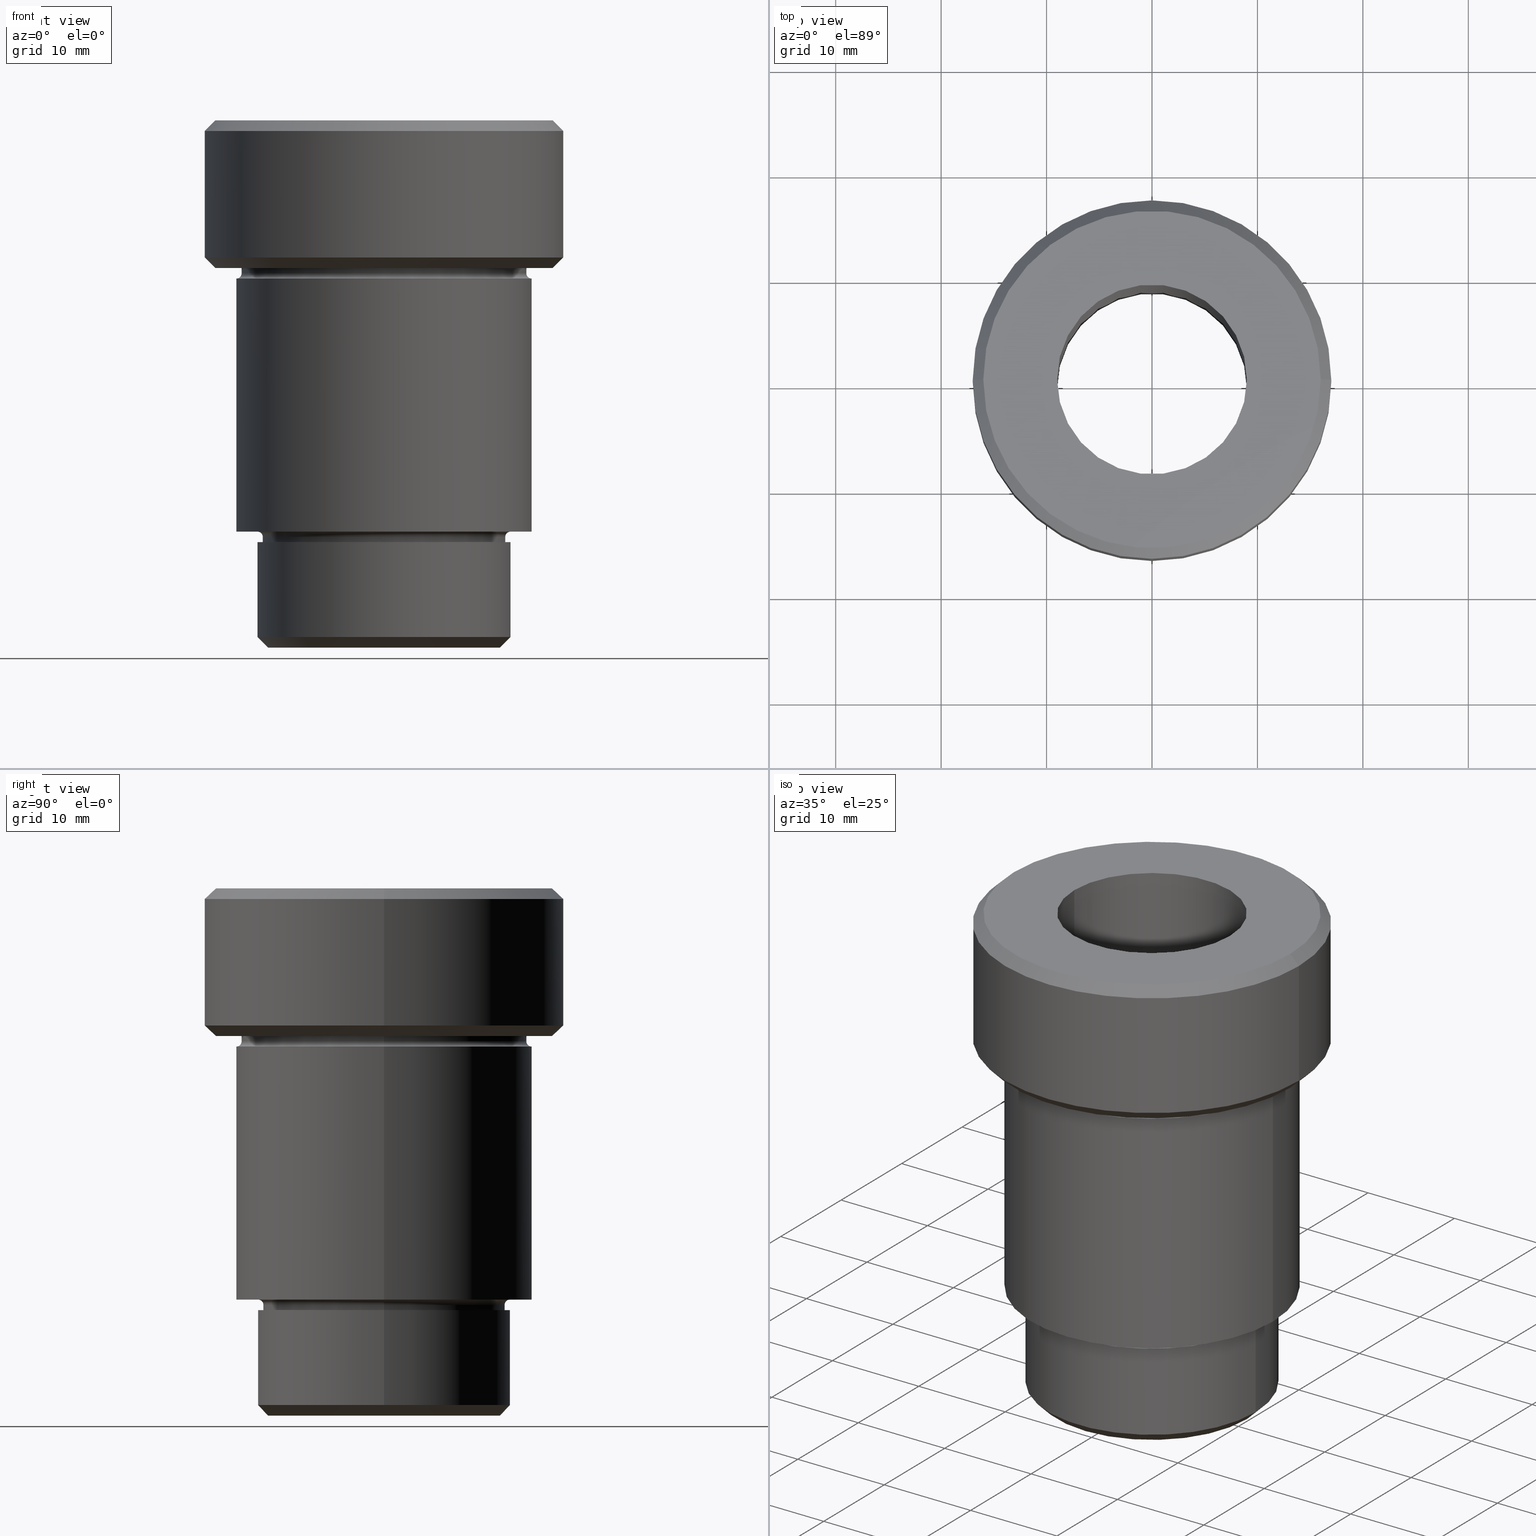
[diagram: canonical four-view strip — front | top / right | iso, engineering-drawing reading convention]
A machine part, canonical four-view strip (front | top / right | iso — engineering-drawing reading convention). The complete STEP part file that produces these views, byte-faithful:
ISO-10303-21;
HEADER;
FILE_DESCRIPTION (( 'STEP AP203' ),
    '1' );
FILE_NAME ('3ec3.STEP',
    '2024-01-08T12:26:03',
    ( '' ),
    ( '' ),
    'SwSTEP 2.0',
    'SolidWorks 2019',
    '' );
FILE_SCHEMA (( 'CONFIG_CONTROL_DESIGN' ));
ENDSEC;

DATA;
#1 = CYLINDRICAL_SURFACE ( 'NONE', #433, 13.50000000000000178 ) ;
#2 = CARTESIAN_POINT ( 'NONE',  ( 12.00000000000000355, 0.000000000000000000, -48.99999999999997868 ) ) ;
#3 = CC_DESIGN_APPROVAL ( #156, ( #348 ) ) ;
#4 = DIRECTION ( 'NONE',  ( 1.000000000000000000, 0.000000000000000000, 0.000000000000000000 ) ) ;
#5 = LINE ( 'NONE', #9, #519 ) ;
#6 = DIRECTION ( 'NONE',  ( -1.000000000000000000, 0.000000000000000000, 0.000000000000000000 ) ) ;
#7 = DIRECTION ( 'NONE',  ( 0.000000000000000000, -1.000000000000000000, 0.000000000000000000 ) ) ;
#8 = EDGE_CURVE ( 'NONE', #194, #87, #744, .T. ) ;
#9 = CARTESIAN_POINT ( 'NONE',  ( -13.50000000000000178, 1.653273178848927064E-15, 0.000000000000000000 ) ) ;
#10 = FACE_OUTER_BOUND ( 'NONE', #30, .T. ) ;
#11 = ORIENTED_EDGE ( 'NONE', *, *, #467, .F. ) ;
#12 = PERSON_AND_ORGANIZATION_ROLE ( 'design_owner' ) ;
#13 = ORIENTED_EDGE ( 'NONE', *, *, #165, .F. ) ;
#14 = CARTESIAN_POINT ( 'NONE',  ( 0.000000000000000000, 14.00000000000000355, -39.00000000000000000 ) ) ;
#15 = DIRECTION ( 'NONE',  ( 0.000000000000000000, 0.000000000000000000, 1.000000000000000000 ) ) ;
#16 = CIRCLE ( 'NONE', #650, 10.99999999999997513 ) ;
#17 = CC_DESIGN_PERSON_AND_ORGANIZATION_ASSIGNMENT ( #506, #193, ( #348 ) ) ;
#18 = DIRECTION ( 'NONE',  ( 1.000000000000000000, 0.000000000000000000, 0.000000000000000000 ) ) ;
#19 = ADVANCED_FACE ( 'NONE', ( #634 ), #478, .T. ) ;
#20 = CARTESIAN_POINT ( 'NONE',  ( 0.000000000000000000, 0.000000000000000000, -48.99999999999997868 ) ) ;
#21 = DIRECTION ( 'NONE',  ( -1.000000000000000000, 0.000000000000000000, 0.000000000000000000 ) ) ;
#22 = PERSON_AND_ORGANIZATION ( #61, #532 ) ;
#23 = CARTESIAN_POINT ( 'NONE',  ( 0.000000000000000000, 0.000000000000000000, -14.99999999999999822 ) ) ;
#24 = APPROVAL_PERSON_ORGANIZATION ( #561, #156, #264 ) ;
#25 = DIRECTION ( 'NONE',  ( -1.000000000000000000, 0.000000000000000000, 0.000000000000000000 ) ) ;
#26 = EDGE_CURVE ( 'NONE', #523, #62, #319, .T. ) ;
#27 = AXIS2_PLACEMENT_3D ( 'NONE', #117, #426, #251 ) ;
#28 = CYLINDRICAL_SURFACE ( 'NONE', #341, 12.00000000000000355 ) ;
#29 = CARTESIAN_POINT ( 'NONE',  ( -11.50000000000000355, 1.408343819019456570E-15, -40.00000000000000000 ) ) ;
#30 = EDGE_LOOP ( 'NONE', ( #48, #511, #164, #147 ) ) ;
#31 = PERSON_AND_ORGANIZATION_ROLE ( 'creator' ) ;
#32 = CARTESIAN_POINT ( 'NONE',  ( 0.000000000000000000, 0.000000000000000000, -50.00000000000000000 ) ) ;
#33 = DIRECTION ( 'NONE',  ( 1.000000000000000000, 0.000000000000000000, 0.000000000000000000 ) ) ;
#34 = ORIENTED_EDGE ( 'NONE', *, *, #255, .T. ) ;
#35 = DIRECTION ( 'NONE',  ( -1.000000000000000000, 0.000000000000000000, 0.000000000000000000 ) ) ;
#36 = CALENDAR_DATE ( 2024, 8, 1 ) ;
#37 = PLANE ( 'NONE',  #457 ) ;
#38 = CARTESIAN_POINT ( 'NONE',  ( 0.000000000000000000, 0.000000000000000000, -40.00000000000000000 ) ) ;
#39 = ORIENTED_EDGE ( 'NONE', *, *, #471, .F. ) ;
#40 = CIRCLE ( 'NONE', #493, 0.5000000000000004441 ) ;
#41 = DIRECTION ( 'NONE',  ( -0.000000000000000000, -0.000000000000000000, 1.000000000000000000 ) ) ;
#42 = EDGE_LOOP ( 'NONE', ( #170, #782, #501, #240 ) ) ;
#43 = AXIS2_PLACEMENT_3D ( 'NONE', #214, #766, #453 ) ;
#44 = CARTESIAN_POINT ( 'NONE',  ( 0.000000000000000000, 0.000000000000000000, -39.00000000000000000 ) ) ;
#45 = DIRECTION ( 'NONE',  ( 1.000000000000000000, 0.000000000000000000, 0.000000000000000000 ) ) ;
#46 = CONICAL_SURFACE ( 'NONE', #580, 16.00000000000000000, 0.7853981633974500554 ) ;
#47 = EDGE_CURVE ( 'NONE', #438, #225, #5, .T. ) ;
#48 = ORIENTED_EDGE ( 'NONE', *, *, #674, .F. ) ;
#49 = CARTESIAN_POINT ( 'NONE',  ( 0.000000000000000000, 0.000000000000000000, -39.00000000000000000 ) ) ;
#50 = ORIENTED_EDGE ( 'NONE', *, *, #429, .T. ) ;
#51 = LINE ( 'NONE', #2, #636 ) ;
#52 = ORIENTED_EDGE ( 'NONE', *, *, #679, .T. ) ;
#53 = DIRECTION ( 'NONE',  ( -0.000000000000000000, -0.000000000000000000, 1.000000000000000000 ) ) ;
#54 = CYLINDRICAL_SURFACE ( 'NONE', #358, 17.00000000000000000 ) ;
#55 = ORIENTED_EDGE ( 'NONE', *, *, #342, .F. ) ;
#56 = DIRECTION ( 'NONE',  ( -0.000000000000000000, -0.000000000000000000, 1.000000000000000000 ) ) ;
#57 = DIRECTION ( 'NONE',  ( 0.000000000000000000, 0.000000000000000000, 1.000000000000000000 ) ) ;
#58 = AXIS2_PLACEMENT_3D ( 'NONE', #627, #140, #331 ) ;
#59 = DIRECTION ( 'NONE',  ( -0.000000000000000000, -0.000000000000000000, 1.000000000000000000 ) ) ;
#60 = CARTESIAN_POINT ( 'NONE',  ( 0.000000000000000000, 0.000000000000000000, 0.000000000000000000 ) ) ;
#61 = PERSON ( 'NEUR�EN�', 'NEUR�EN�', 'NEUR�EN�', ('NEUR�EN�'), ('NEUR�EN�'), ('NEUR�EN�') ) ;
#62 = VERTEX_POINT ( 'NONE', #640 ) ;
#63 = PERSON_AND_ORGANIZATION ( #61, #532 ) ;
#64 = DIRECTION ( 'NONE',  ( 1.000000000000000000, 0.000000000000000000, 0.000000000000000000 ) ) ;
#65 = TOROIDAL_SURFACE ( 'NONE', #497, 14.00000000000000178, 0.5000000000000000000 ) ;
#66 = EDGE_CURVE ( 'NONE', #414, #359, #276, .T. ) ;
#67 = DIRECTION ( 'NONE',  ( -0.7071067811865500152, 8.659560562354962440E-17, 0.7071067811865451302 ) ) ;
#68 = AXIS2_PLACEMENT_3D ( 'NONE', #20, #683, #64 ) ;
#69 = AXIS2_PLACEMENT_3D ( 'NONE', #643, #337, #25 ) ;
#70 = ADVANCED_FACE ( 'NONE', ( #764 ), #28, .T. ) ;
#71 = VERTEX_POINT ( 'NONE', #470 ) ;
#72 = DIRECTION ( 'NONE',  ( -0.000000000000000000, -0.000000000000000000, 1.000000000000000000 ) ) ;
#73 = DIRECTION ( 'NONE',  ( 1.000000000000000000, 0.000000000000000000, 0.000000000000000000 ) ) ;
#74 = ORIENTED_EDGE ( 'NONE', *, *, #137, .T. ) ;
#75 = CYLINDRICAL_SURFACE ( 'NONE', #58, 13.50000000000000178 ) ;
#76 = CARTESIAN_POINT ( 'NONE',  ( 0.000000000000000000, 0.000000000000000000, -0.9999999999999974465 ) ) ;
#77 = ADVANCED_FACE ( 'NONE', ( #644 ), #336, .T. ) ;
#78 = ORIENTED_EDGE ( 'NONE', *, *, #429, .F. ) ;
#79 = FACE_OUTER_BOUND ( 'NONE', #42, .T. ) ;
#80 = VECTOR ( 'NONE', #199, 1000.000000000000000 ) ;
#81 = APPROVAL_PERSON_ORGANIZATION ( #495, #610, #436 ) ;
#82 = CIRCLE ( 'NONE', #633, 17.00000000000000000 ) ;
#83 = DIRECTION ( 'NONE',  ( 0.000000000000000000, 0.000000000000000000, -1.000000000000000000 ) ) ;
#84 = AXIS2_PLACEMENT_3D ( 'NONE', #176, #415, #660 ) ;
#85 = ORIENTED_EDGE ( 'NONE', *, *, #333, .F. ) ;
#86 = CARTESIAN_POINT ( 'NONE',  ( 0.000000000000000000, 0.000000000000000000, 0.000000000000000000 ) ) ;
#87 = VERTEX_POINT ( 'NONE', #106 ) ;
#88 = CARTESIAN_POINT ( 'NONE',  ( 0.000000000000000000, 0.000000000000000000, -13.00000000000001421 ) ) ;
#89 = DIRECTION ( 'NONE',  ( 1.000000000000000000, 0.000000000000000000, 0.000000000000000000 ) ) ;
#90 = ORIENTED_EDGE ( 'NONE', *, *, #317, .F. ) ;
#91 = ADVANCED_FACE ( 'NONE', ( #577 ), #236, .T. ) ;
#92 = PERSON_AND_ORGANIZATION ( #61, #532 ) ;
#93 = FACE_OUTER_BOUND ( 'NONE', #768, .T. ) ;
#94 = CARTESIAN_POINT ( 'NONE',  ( 9.000000000000000000, 0.000000000000000000, 0.000000000000000000 ) ) ;
#95 = CC_DESIGN_PERSON_AND_ORGANIZATION_ASSIGNMENT ( #206, #352, ( #743 ) ) ;
#96 = VECTOR ( 'NONE', #762, 1000.000000000000000 ) ;
#97 = VECTOR ( 'NONE', #618, 1000.000000000000000 ) ;
#98 = DIRECTION ( 'NONE',  ( -0.000000000000000000, -0.000000000000000000, 1.000000000000000000 ) ) ;
#99 = DIRECTION ( 'NONE',  ( -1.000000000000000000, 0.000000000000000000, 0.000000000000000000 ) ) ;
#100 = VERTEX_POINT ( 'NONE', #648 ) ;
#101 = ADVANCED_FACE ( 'NONE', ( #530 ), #533, .T. ) ;
#102 = CARTESIAN_POINT ( 'NONE',  ( 0.000000000000000000, 0.000000000000000000, 0.000000000000000000 ) ) ;
#103 = ORIENTED_EDGE ( 'NONE', *, *, #211, .F. ) ;
#104 = CARTESIAN_POINT ( 'NONE',  ( 0.000000000000000000, 0.000000000000000000, -14.49999999999999645 ) ) ;
#105 = ORIENTED_EDGE ( 'NONE', *, *, #8, .T. ) ;
#106 = CARTESIAN_POINT ( 'NONE',  ( -12.00000000000000355, 0.000000000000000000, -39.00000000000000000 ) ) ;
#107 = EDGE_CURVE ( 'NONE', #722, #659, #124, .T. ) ;
#108 = DIRECTION ( 'NONE',  ( -0.000000000000000000, -0.000000000000000000, 1.000000000000000000 ) ) ;
#109 = CIRCLE ( 'NONE', #285, 0.5000000000000004441 ) ;
#110 = FACE_OUTER_BOUND ( 'NONE', #245, .T. ) ;
#111 = CIRCLE ( 'NONE', #721, 9.000000000000000000 ) ;
#112 = EDGE_LOOP ( 'NONE', ( #90, #279, #237, #443 ) ) ;
#113 = VECTOR ( 'NONE', #41, 1000.000000000000000 ) ;
#114 = EDGE_LOOP ( 'NONE', ( #354, #481, #78, #424 ) ) ;
#115 = DIRECTION ( 'NONE',  ( -1.000000000000000000, 0.000000000000000000, 0.000000000000000000 ) ) ;
#116 = FACE_OUTER_BOUND ( 'NONE', #755, .T. ) ;
#117 = CARTESIAN_POINT ( 'NONE',  ( 12.00000000000000355, 1.469576158976824342E-15, -39.50000000000000000 ) ) ;
#118 = EDGE_CURVE ( 'NONE', #707, #659, #776, .T. ) ;
#119 = CARTESIAN_POINT ( 'NONE',  ( -17.00000000000000000, 2.081899558550500280E-15, -0.9999999999999974465 ) ) ;
#120 = EDGE_LOOP ( 'NONE', ( #232, #419 ) ) ;
#121 = CC_DESIGN_PERSON_AND_ORGANIZATION_ASSIGNMENT ( #22, #267, ( #418 ) ) ;
#122 = CIRCLE ( 'NONE', #259, 12.00000000000000355 ) ;
#123 = LINE ( 'NONE', #540, #698 ) ;
#124 = CIRCLE ( 'NONE', #677, 14.00000000000000178 ) ;
#125 = LINE ( 'NONE', #375, #690 ) ;
#126 = AXIS2_PLACEMENT_3D ( 'NONE', #310, #127, #676 ) ;
#127 = DIRECTION ( 'NONE',  ( 0.000000000000000000, 0.000000000000000000, -1.000000000000000000 ) ) ;
#128 = CARTESIAN_POINT ( 'NONE',  ( -17.00000000000000000, 2.081899558550500280E-15, -13.00000000000001421 ) ) ;
#129 = EDGE_CURVE ( 'NONE', #177, #668, #353, .T. ) ;
#130 = CARTESIAN_POINT ( 'NONE',  ( -13.50000000000000178, 1.653273178848927064E-15, -14.49999999999999645 ) ) ;
#131 = CARTESIAN_POINT ( 'NONE',  ( 0.000000000000000000, 0.000000000000000000, 0.000000000000000000 ) ) ;
#132 = ORIENTED_EDGE ( 'NONE', *, *, #66, .T. ) ;
#133 = AXIS2_PLACEMENT_3D ( 'NONE', #739, #196, #18 ) ;
#134 = AXIS2_PLACEMENT_3D ( 'NONE', #731, #612, #239 ) ;
#135 = CARTESIAN_POINT ( 'NONE',  ( 17.00000000000000000, 0.000000000000000000, 0.000000000000000000 ) ) ;
#136 = DIRECTION ( 'NONE',  ( 1.000000000000000000, 0.000000000000000000, 0.000000000000000000 ) ) ;
#137 = EDGE_CURVE ( 'NONE', #177, #559, #185, .T. ) ;
#138 = LINE ( 'NONE', #135, #355 ) ;
#139 = VERTEX_POINT ( 'NONE', #403 ) ;
#140 = DIRECTION ( 'NONE',  ( -0.000000000000000000, -0.000000000000000000, 1.000000000000000000 ) ) ;
#141 = DIRECTION ( 'NONE',  ( 1.000000000000000000, 0.000000000000000000, 0.000000000000000000 ) ) ;
#142 = DATE_AND_TIME ( #252, #663 ) ;
#143 = ORIENTED_EDGE ( 'NONE', *, *, #619, .F. ) ;
#144 = CYLINDRICAL_SURFACE ( 'NONE', #774, 9.000000000000000000 ) ;
#145 = CIRCLE ( 'NONE', #592, 17.00000000000000000 ) ;
#146 = CC_DESIGN_SECURITY_CLASSIFICATION ( #743, ( #418 ) ) ;
#147 = ORIENTED_EDGE ( 'NONE', *, *, #220, .F. ) ;
#148 = CIRCLE ( 'NONE', #596, 16.00000000000000000 ) ;
#149 = PERSON_AND_ORGANIZATION ( #61, #532 ) ;
#150 = DIRECTION ( 'NONE',  ( -0.000000000000000000, -0.000000000000000000, 1.000000000000000000 ) ) ;
#151 = CIRCLE ( 'NONE', #454, 13.50000000000000178 ) ;
#152 = DIRECTION ( 'NONE',  ( 0.000000000000000000, 0.000000000000000000, -1.000000000000000000 ) ) ;
#153 = FACE_OUTER_BOUND ( 'NONE', #458, .T. ) ;
#154 = EDGE_LOOP ( 'NONE', ( #573, #322, #775, #422 ) ) ;
#155 = DIRECTION ( 'NONE',  ( -1.000000000000000000, 0.000000000000000000, -0.000000000000000000 ) ) ;
#156 = APPROVAL ( #572, 'NEUR�EN�' ) ;
#157 = ADVANCED_FACE ( 'NONE', ( #93 ), #518, .T. ) ;
#158 = CARTESIAN_POINT ( 'NONE',  ( 0.000000000000000000, 0.000000000000000000, -50.00000000000000000 ) ) ;
#159 = DIRECTION ( 'NONE',  ( -0.000000000000000000, -0.000000000000000000, 1.000000000000000000 ) ) ;
#160 = CC_DESIGN_APPROVAL ( #624, ( #743 ) ) ;
#161 = VECTOR ( 'NONE', #593, 1000.000000000000000 ) ;
#162 = DIRECTION ( 'NONE',  ( -0.000000000000000000, -0.000000000000000000, 1.000000000000000000 ) ) ;
#163 = ORIENTED_EDGE ( 'NONE', *, *, #107, .T. ) ;
#164 = ORIENTED_EDGE ( 'NONE', *, *, #200, .F. ) ;
#165 = EDGE_CURVE ( 'NONE', #225, #346, #595, .T. ) ;
#166 = DIRECTION ( 'NONE',  ( -0.000000000000000000, -0.000000000000000000, 1.000000000000000000 ) ) ;
#167 = CARTESIAN_POINT ( 'NONE',  ( 10.99999999999997513, 0.000000000000000000, -50.00000000000000000 ) ) ;
#168 = EDGE_LOOP ( 'NONE', ( #772, #565, #507, #407 ) ) ;
#169 = CARTESIAN_POINT ( 'NONE',  ( 0.000000000000000000, 0.000000000000000000, -13.00000000000001421 ) ) ;
#170 = ORIENTED_EDGE ( 'NONE', *, *, #416, .F. ) ;
#171 = CARTESIAN_POINT ( 'NONE',  ( 12.00000000000000355, 1.469576158976824342E-15, -39.00000000000000000 ) ) ;
#172 = EDGE_CURVE ( 'NONE', #668, #100, #111, .T. ) ;
#173 = AXIS2_PLACEMENT_3D ( 'NONE', #667, #549, #115 ) ;
#174 = ADVANCED_FACE ( 'NONE', ( #463, #706 ), #37, .T. ) ;
#175 = FACE_OUTER_BOUND ( 'NONE', #363, .T. ) ;
#176 = CARTESIAN_POINT ( 'NONE',  ( 0.000000000000000000, 0.000000000000000000, -40.00000000000000000 ) ) ;
#177 = VERTEX_POINT ( 'NONE', #338 ) ;
#178 = DIRECTION ( 'NONE',  ( -1.000000000000000000, 0.000000000000000000, 0.000000000000000000 ) ) ;
#179 = DIRECTION ( 'NONE',  ( -0.000000000000000000, -0.000000000000000000, 1.000000000000000000 ) ) ;
#180 = EDGE_LOOP ( 'NONE', ( #526, #260, #575, #450 ) ) ;
#181 = DIRECTION ( 'NONE',  ( -0.000000000000000000, -0.000000000000000000, 1.000000000000000000 ) ) ;
#182 = EDGE_LOOP ( 'NONE', ( #282, #477 ) ) ;
#183 = EDGE_CURVE ( 'NONE', #62, #401, #581, .T. ) ;
#184 = AXIS2_PLACEMENT_3D ( 'NONE', #131, #15, #321 ) ;
#185 = CIRCLE ( 'NONE', #288, 9.000000000000000000 ) ;
#186 = FACE_OUTER_BOUND ( 'NONE', #182, .T. ) ;
#187 = CIRCLE ( 'NONE', #384, 9.000000000000000000 ) ;
#188 = DIRECTION ( 'NONE',  ( -0.000000000000000000, -0.000000000000000000, 1.000000000000000000 ) ) ;
#189 = AXIS2_PLACEMENT_3D ( 'NONE', #169, #405, #417 ) ;
#190 = MECHANICAL_CONTEXT ( 'NONE', #628, 'mechanical' ) ;
#191 = EDGE_CURVE ( 'NONE', #787, #707, #558, .T. ) ;
#192 = DIRECTION ( 'NONE',  ( -1.000000000000000000, 0.000000000000000000, 0.000000000000000000 ) ) ;
#193 = PERSON_AND_ORGANIZATION_ROLE ( 'creator' ) ;
#194 = VERTEX_POINT ( 'NONE', #171 ) ;
#195 = DIRECTION ( 'NONE',  ( 1.000000000000000000, 0.000000000000000000, 0.000000000000000000 ) ) ;
#196 = DIRECTION ( 'NONE',  ( -0.000000000000000000, -0.000000000000000000, 1.000000000000000000 ) ) ;
#197 = ORIENTED_EDGE ( 'NONE', *, *, #588, .F. ) ;
#198 = AXIS2_PLACEMENT_3D ( 'NONE', #213, #472, #702 ) ;
#199 = DIRECTION ( 'NONE',  ( -0.000000000000000000, -0.000000000000000000, 1.000000000000000000 ) ) ;
#200 = EDGE_CURVE ( 'NONE', #87, #194, #479, .T. ) ;
#201 = AXIS2_PLACEMENT_3D ( 'NONE', #49, #56, #230 ) ;
#202 = ORIENTED_EDGE ( 'NONE', *, *, #510, .T. ) ;
#203 = CARTESIAN_POINT ( 'NONE',  ( -11.50000000000000355, 1.408343819019456570E-15, -39.50000000000000000 ) ) ;
#204 = ORIENTED_EDGE ( 'NONE', *, *, #66, .F. ) ;
#205 = CARTESIAN_POINT ( 'NONE',  ( 0.000000000000000000, 0.000000000000000000, -14.99999999999999822 ) ) ;
#206 = PERSON_AND_ORGANIZATION ( #61, #532 ) ;
#207 = DIRECTION ( 'NONE',  ( 1.000000000000000000, 0.000000000000000000, 0.000000000000000000 ) ) ;
#208 = ORIENTED_EDGE ( 'NONE', *, *, #642, .F. ) ;
#209 = AXIS2_PLACEMENT_3D ( 'NONE', #704, #277, #483 ) ;
#210 = TOROIDAL_SURFACE ( 'NONE', #468, 14.00000000000000178, 0.5000000000000000000 ) ;
#211 = EDGE_CURVE ( 'NONE', #685, #523, #420, .T. ) ;
#212 = DIRECTION ( 'NONE',  ( 1.000000000000000000, 0.000000000000000000, 0.000000000000000000 ) ) ;
#213 = CARTESIAN_POINT ( 'NONE',  ( 0.000000000000000000, 0.000000000000000000, 0.000000000000000000 ) ) ;
#214 = CARTESIAN_POINT ( 'NONE',  ( 0.000000000000000000, 0.000000000000000000, -48.99999999999997868 ) ) ;
#215 = DIRECTION ( 'NONE',  ( -0.000000000000000000, -0.000000000000000000, 1.000000000000000000 ) ) ;
#216 = CARTESIAN_POINT ( 'NONE',  ( -14.00000000000000178, 1.714505518806294835E-15, 0.000000000000000000 ) ) ;
#217 = CARTESIAN_POINT ( 'NONE',  ( 14.00000000000000178, 0.000000000000000000, 0.000000000000000000 ) ) ;
#218 = EDGE_LOOP ( 'NONE', ( #55, #334, #570, #369 ) ) ;
#219 = DIRECTION ( 'NONE',  ( 1.000000000000000000, 0.000000000000000000, 0.000000000000000000 ) ) ;
#220 = EDGE_CURVE ( 'NONE', #529, #87, #275, .T. ) ;
#221 = AXIS2_PLACEMENT_3D ( 'NONE', #788, #59, #729 ) ;
#222 = DATE_AND_TIME ( #499, #357 ) ;
#223 = AXIS2_PLACEMENT_3D ( 'NONE', #86, #447, #141 ) ;
#224 = CARTESIAN_POINT ( 'NONE',  ( -17.00000000000000000, 2.081899558550500280E-15, 0.000000000000000000 ) ) ;
#225 = VERTEX_POINT ( 'NONE', #480 ) ;
#226 = CARTESIAN_POINT ( 'NONE',  ( -14.00000000000000178, 1.714505518806294835E-15, -14.49999999999999645 ) ) ;
#227 = ORIENTED_EDGE ( 'NONE', *, *, #165, .T. ) ;
#228 = DIRECTION ( 'NONE',  ( 1.224646799147353207E-16, 1.000000000000000000, 0.000000000000000000 ) ) ;
#229 = VERTEX_POINT ( 'NONE', #167 ) ;
#230 = DIRECTION ( 'NONE',  ( -1.000000000000000000, 0.000000000000000000, 0.000000000000000000 ) ) ;
#231 = EDGE_CURVE ( 'NONE', #599, #359, #250, .T. ) ;
#232 = ORIENTED_EDGE ( 'NONE', *, *, #211, .T. ) ;
#233 = FACE_OUTER_BOUND ( 'NONE', #218, .T. ) ;
#234 = CIRCLE ( 'NONE', #209, 11.50000000000000355 ) ;
#235 = DIRECTION ( 'NONE',  ( 0.000000000000000000, 0.000000000000000000, -1.000000000000000000 ) ) ;
#236 = CONICAL_SURFACE ( 'NONE', #371, 17.00000000000000000, 0.7853981633974500554 ) ;
#237 = ORIENTED_EDGE ( 'NONE', *, *, #662, .F. ) ;
#238 = CONICAL_SURFACE ( 'NONE', #126, 16.00000000000000000, 0.7853981633974500554 ) ;
#239 = DIRECTION ( 'NONE',  ( 1.000000000000000000, 0.000000000000000000, 0.000000000000000000 ) ) ;
#240 = ORIENTED_EDGE ( 'NONE', *, *, #129, .F. ) ;
#241 = DIRECTION ( 'NONE',  ( -0.000000000000000000, -1.000000000000000000, -0.000000000000000000 ) ) ;
#242 = FACE_BOUND ( 'NONE', #446, .T. ) ;
#243 = ADVANCED_FACE ( 'NONE', ( #110 ), #75, .T. ) ;
#244 = DIRECTION ( 'NONE',  ( -0.000000000000000000, -0.000000000000000000, 1.000000000000000000 ) ) ;
#245 = EDGE_LOOP ( 'NONE', ( #626, #52, #202, #13 ) ) ;
#246 = CARTESIAN_POINT ( 'NONE',  ( 0.000000000000000000, 0.000000000000000000, -40.00000000000000000 ) ) ;
#247 = ADVANCED_FACE ( 'NONE', ( #622 ), #678, .T. ) ;
#248 = DATE_TIME_ROLE ( 'creation_date' ) ;
#249 = AXIS2_PLACEMENT_3D ( 'NONE', #586, #98, #591 ) ;
#250 = CIRCLE ( 'NONE', #84, 12.00000000000000178 ) ;
#251 = DIRECTION ( 'NONE',  ( -1.000000000000000000, -1.224646799147353454E-16, 0.000000000000000000 ) ) ;
#252 = CALENDAR_DATE ( 2024, 8, 1 ) ;
#253 = DIRECTION ( 'NONE',  ( 1.000000000000000000, 0.000000000000000000, 0.000000000000000000 ) ) ;
#254 = EDGE_CURVE ( 'NONE', #685, #602, #323, .T. ) ;
#255 = EDGE_CURVE ( 'NONE', #707, #787, #303, .T. ) ;
#256 = LINE ( 'NONE', #505, #80 ) ;
#257 = APPLICATION_PROTOCOL_DEFINITION ( 'international standard', 'config_control_design', 1994, #289 ) ;
#258 = CC_DESIGN_DATE_AND_TIME_ASSIGNMENT ( #142, #248, ( #348 ) ) ;
#259 = AXIS2_PLACEMENT_3D ( 'NONE', #462, #347, #35 ) ;
#260 = ORIENTED_EDGE ( 'NONE', *, *, #372, .T. ) ;
#261 = DIRECTION ( 'NONE',  ( 1.000000000000000000, 0.000000000000000000, 0.000000000000000000 ) ) ;
#262 = CLOSED_SHELL ( 'NONE', ( #484, #391, #527, #439, #247, #101, #70, #717, #157, #387, #344, #555, #488, #736, #174, #243, #77, #482, #325, #752, #653, #19, #91, #601, #699, #578, #500 ) ) ;
#263 = AXIS2_PLACEMENT_3D ( 'NONE', #205, #266, #395 ) ;
#264 = APPROVAL_ROLE ( '' ) ;
#265 = ORIENTED_EDGE ( 'NONE', *, *, #679, .F. ) ;
#266 = DIRECTION ( 'NONE',  ( -0.000000000000000000, -0.000000000000000000, 1.000000000000000000 ) ) ;
#267 = PERSON_AND_ORGANIZATION_ROLE ( 'design_supplier' ) ;
#268 = DIRECTION ( 'NONE',  ( -0.000000000000000000, -0.000000000000000000, 1.000000000000000000 ) ) ;
#269 = CARTESIAN_POINT ( 'NONE',  ( 11.50000000000000355, 0.000000000000000000, -39.50000000000000000 ) ) ;
#270 = EDGE_CURVE ( 'NONE', #414, #539, #786, .T. ) ;
#271 = DIRECTION ( 'NONE',  ( 0.000000000000000000, 0.000000000000000000, 1.000000000000000000 ) ) ;
#272 = CARTESIAN_POINT ( 'NONE',  ( 12.00000000000000178, 0.000000000000000000, -40.00000000000000000 ) ) ;
#273 = AXIS2_PLACEMENT_3D ( 'NONE', #487, #53, #299 ) ;
#274 = LOCAL_TIME ( 13, 26, 3.000000000000000000, #514 ) ;
#275 = CIRCLE ( 'NONE', #732, 0.5000000000000004441 ) ;
#276 = LINE ( 'NONE', #656, #771 ) ;
#277 = DIRECTION ( 'NONE',  ( 0.000000000000000000, 0.000000000000000000, -1.000000000000000000 ) ) ;
#278 = DIRECTION ( 'NONE',  ( 1.000000000000000000, 0.000000000000000000, 0.000000000000000000 ) ) ;
#279 = ORIENTED_EDGE ( 'NONE', *, *, #26, .T. ) ;
#280 = ORIENTED_EDGE ( 'NONE', *, *, #183, .F. ) ;
#281 = DIRECTION ( 'NONE',  ( 1.000000000000000000, 0.000000000000000000, 0.000000000000000000 ) ) ;
#282 = ORIENTED_EDGE ( 'NONE', *, *, #231, .T. ) ;
#283 = DIRECTION ( 'NONE',  ( 1.000000000000000000, 0.000000000000000000, 0.000000000000000000 ) ) ;
#284 = ORIENTED_EDGE ( 'NONE', *, *, #137, .F. ) ;
#285 = AXIS2_PLACEMENT_3D ( 'NONE', #226, #228, #582 ) ;
#286 = ORIENTED_EDGE ( 'NONE', *, *, #172, .T. ) ;
#287 = APPROVAL_PERSON_ORGANIZATION ( #149, #624, #579 ) ;
#288 = AXIS2_PLACEMENT_3D ( 'NONE', #158, #271, #712 ) ;
#289 = APPLICATION_CONTEXT ( 'configuration controlled 3d designs of mechanical parts and assemblies' ) ;
#290 = AXIS2_PLACEMENT_3D ( 'NONE', #60, #244, #365 ) ;
#291 = AXIS2_PLACEMENT_3D ( 'NONE', #38, #709, #283 ) ;
#292 = CARTESIAN_POINT ( 'NONE',  ( 0.000000000000000000, 0.000000000000000000, -39.00000000000000000 ) ) ;
#293 = ORIENTED_EDGE ( 'NONE', *, *, #471, .T. ) ;
#294 = ORIENTED_EDGE ( 'NONE', *, *, #535, .F. ) ;
#295 = EDGE_LOOP ( 'NONE', ( #74, #541 ) ) ;
#296 = PRODUCT_RELATED_PRODUCT_CATEGORY ( 'detail', '', ( #503 ) ) ;
#297 = EDGE_CURVE ( 'NONE', #229, #693, #16, .T. ) ;
#298 = ORIENTED_EDGE ( 'NONE', *, *, #308, .F. ) ;
#299 = DIRECTION ( 'NONE',  ( 1.000000000000000000, 0.000000000000000000, 0.000000000000000000 ) ) ;
#300 = CARTESIAN_POINT ( 'NONE',  ( 11.50000000000000355, 0.000000000000000000, -40.00000000000000000 ) ) ;
#301 = ORIENTED_EDGE ( 'NONE', *, *, #620, .F. ) ;
#302 = CC_DESIGN_APPROVAL ( #610, ( #418 ) ) ;
#303 = CIRCLE ( 'NONE', #329, 14.00000000000000355 ) ;
#304 = DIRECTION ( 'NONE',  ( 1.000000000000000000, 0.000000000000000000, 0.000000000000000000 ) ) ;
#305 = DESIGN_CONTEXT ( 'detailed design', #289, 'design' ) ;
#306 = EDGE_LOOP ( 'NONE', ( #280, #536, #666, #428 ) ) ;
#307 = DIRECTION ( 'NONE',  ( 0.7071067811865500152, 0.000000000000000000, 0.7071067811865451302 ) ) ;
#308 = EDGE_CURVE ( 'NONE', #100, #668, #187, .T. ) ;
#309 = DIRECTION ( 'NONE',  ( 1.000000000000000000, 0.000000000000000000, 0.000000000000000000 ) ) ;
#310 = CARTESIAN_POINT ( 'NONE',  ( 0.000000000000000000, 0.000000000000000000, 0.000000000000000000 ) ) ;
#311 = CALENDAR_DATE ( 2024, 8, 1 ) ;
#312 = CIRCLE ( 'NONE', #705, 12.00000000000000178 ) ;
#313 = ORIENTED_EDGE ( 'NONE', *, *, #619, .T. ) ;
#314 = AXIS2_PLACEMENT_3D ( 'NONE', #246, #181, #545 ) ;
#315 = CARTESIAN_POINT ( 'NONE',  ( 0.000000000000000000, 0.000000000000000000, 0.000000000000000000 ) ) ;
#316 = EDGE_CURVE ( 'NONE', #62, #602, #82, .T. ) ;
#317 = EDGE_CURVE ( 'NONE', #523, #685, #534, .T. ) ;
#318 = DIRECTION ( 'NONE',  ( 0.000000000000000000, 0.000000000000000000, -1.000000000000000000 ) ) ;
#319 = LINE ( 'NONE', #128, #494 ) ;
#320 = CYLINDRICAL_SURFACE ( 'NONE', #133, 9.000000000000000000 ) ;
#321 = DIRECTION ( 'NONE',  ( 1.000000000000000000, 0.000000000000000000, 0.000000000000000000 ) ) ;
#322 = ORIENTED_EDGE ( 'NONE', *, *, #297, .F. ) ;
#323 = LINE ( 'NONE', #566, #161 ) ;
#324 = CARTESIAN_POINT ( 'NONE',  ( -9.000000000000000000, 1.102182119232617714E-15, -50.00000000000000000 ) ) ;
#325 = ADVANCED_FACE ( 'NONE', ( #551 ), #485, .T. ) ;
#326 = ORIENTED_EDGE ( 'NONE', *, *, #361, .T. ) ;
#327 = FACE_OUTER_BOUND ( 'NONE', #613, .T. ) ;
#328 = VECTOR ( 'NONE', #525, 1000.000000000000000 ) ;
#329 = AXIS2_PLACEMENT_3D ( 'NONE', #44, #754, #207 ) ;
#330 = ORIENTED_EDGE ( 'NONE', *, *, #191, .F. ) ;
#331 = DIRECTION ( 'NONE',  ( 1.000000000000000000, 0.000000000000000000, 0.000000000000000000 ) ) ;
#332 = CARTESIAN_POINT ( 'NONE',  ( 0.000000000000000000, 0.000000000000000000, -39.50000000000000000 ) ) ;
#333 = EDGE_CURVE ( 'NONE', #356, #531, #790, .T. ) ;
#334 = ORIENTED_EDGE ( 'NONE', *, *, #460, .F. ) ;
#335 = DIRECTION ( 'NONE',  ( -0.000000000000000000, -0.000000000000000000, 1.000000000000000000 ) ) ;
#336 = CYLINDRICAL_SURFACE ( 'NONE', #719, 14.00000000000000178 ) ;
#337 = DIRECTION ( 'NONE',  ( 0.000000000000000000, 0.000000000000000000, -1.000000000000000000 ) ) ;
#338 = CARTESIAN_POINT ( 'NONE',  ( 9.000000000000000000, 0.000000000000000000, -50.00000000000000000 ) ) ;
#339 = CARTESIAN_POINT ( 'NONE',  ( 17.00000000000000000, 0.000000000000000000, -0.9999999999999974465 ) ) ;
#340 = AXIS2_PLACEMENT_3D ( 'NONE', #332, #451, #21 ) ;
#341 = AXIS2_PLACEMENT_3D ( 'NONE', #654, #455, #89 ) ;
#342 = EDGE_CURVE ( 'NONE', #531, #194, #496, .T. ) ;
#343 = AXIS2_PLACEMENT_3D ( 'NONE', #498, #735, #192 ) ;
#344 = ADVANCED_FACE ( 'NONE', ( #368 ), #54, .T. ) ;
#345 = DIRECTION ( 'NONE',  ( -0.000000000000000000, -0.000000000000000000, 1.000000000000000000 ) ) ;
#346 = VERTEX_POINT ( 'NONE', #489 ) ;
#347 = DIRECTION ( 'NONE',  ( -0.000000000000000000, -0.000000000000000000, 1.000000000000000000 ) ) ;
#348 = PRODUCT_DEFINITION ( 'NEZN�M�', '', #418, #305 ) ;
#349 = CARTESIAN_POINT ( 'NONE',  ( 0.000000000000000000, 0.000000000000000000, -13.00000000000001421 ) ) ;
#350 = ORIENTED_EDGE ( 'NONE', *, *, #642, .T. ) ;
#351 = LINE ( 'NONE', #528, #96 ) ;
#352 = PERSON_AND_ORGANIZATION_ROLE ( 'classification_officer' ) ;
#353 = LINE ( 'NONE', #406, #773 ) ;
#354 = ORIENTED_EDGE ( 'NONE', *, *, #603, .T. ) ;
#355 = VECTOR ( 'NONE', #740, 1000.000000000000000 ) ;
#356 = VERTEX_POINT ( 'NONE', #300 ) ;
#357 = LOCAL_TIME ( 13, 26, 3.000000000000000000, #557 ) ;
#358 = AXIS2_PLACEMENT_3D ( 'NONE', #475, #607, #423 ) ;
#359 = VERTEX_POINT ( 'NONE', #669 ) ;
#360 = CC_DESIGN_PERSON_AND_ORGANIZATION_ASSIGNMENT ( #63, #12, ( #503 ) ) ;
#361 = EDGE_CURVE ( 'NONE', #71, #388, #148, .T. ) ;
#362 = ORIENTED_EDGE ( 'NONE', *, *, #688, .F. ) ;
#363 = EDGE_LOOP ( 'NONE', ( #265, #521, #163, #651 ) ) ;
#364 = CYLINDRICAL_SURFACE ( 'NONE', #273, 11.50000000000000355 ) ;
#365 = DIRECTION ( 'NONE',  ( 1.000000000000000000, 0.000000000000000000, 0.000000000000000000 ) ) ;
#366 = ORIENTED_EDGE ( 'NONE', *, *, #448, .T. ) ;
#367 = DIRECTION ( 'NONE',  ( 0.000000000000000000, 0.000000000000000000, -1.000000000000000000 ) ) ;
#368 = FACE_OUTER_BOUND ( 'NONE', #168, .T. ) ;
#369 = ORIENTED_EDGE ( 'NONE', *, *, #8, .F. ) ;
#370 = AXIS2_PLACEMENT_3D ( 'NONE', #756, #560, #6 ) ;
#371 = AXIS2_PLACEMENT_3D ( 'NONE', #349, #162, #281 ) ;
#372 = EDGE_CURVE ( 'NONE', #693, #414, #553, .T. ) ;
#373 = CIRCLE ( 'NONE', #343, 11.50000000000000355 ) ;
#374 = CARTESIAN_POINT ( 'NONE',  ( 16.00000000000001421, 0.000000000000000000, -13.99999999999999822 ) ) ;
#375 = CARTESIAN_POINT ( 'NONE',  ( 12.00000000000000355, 0.000000000000000000, 0.000000000000000000 ) ) ;
#376 = CARTESIAN_POINT ( 'NONE',  ( 0.000000000000000000, 0.000000000000000000, -14.49999999999999645 ) ) ;
#377 =( NAMED_UNIT ( * ) SI_UNIT ( $, .STERADIAN. ) SOLID_ANGLE_UNIT ( ) );
#378 = ORIENTED_EDGE ( 'NONE', *, *, #191, .T. ) ;
#379 = CARTESIAN_POINT ( 'NONE',  ( 16.00000000000000000, 1.959434878635765131E-15, 0.000000000000000000 ) ) ;
#380 =( GEOMETRIC_REPRESENTATION_CONTEXT ( 3 ) GLOBAL_UNCERTAINTY_ASSIGNED_CONTEXT ( ( #427 ) ) GLOBAL_UNIT_ASSIGNED_CONTEXT ( ( #684, #625, #377 ) ) REPRESENTATION_CONTEXT ( 'NONE', 'WORKASPACE' ) );
#381 = ORIENTED_EDGE ( 'NONE', *, *, #254, .T. ) ;
#382 = LOCAL_TIME ( 13, 26, 3.000000000000000000, #758 ) ;
#383 = ORIENTED_EDGE ( 'NONE', *, *, #620, .T. ) ;
#384 = AXIS2_PLACEMENT_3D ( 'NONE', #759, #150, #398 ) ;
#385 = ORIENTED_EDGE ( 'NONE', *, *, #674, .T. ) ;
#386 = FACE_OUTER_BOUND ( 'NONE', #432, .T. ) ;
#387 = ADVANCED_FACE ( 'NONE', ( #491 ), #1, .T. ) ;
#388 = VERTEX_POINT ( 'NONE', #609 ) ;
#389 = CARTESIAN_POINT ( 'NONE',  ( 0.000000000000000000, 0.000000000000000000, -50.00000000000000000 ) ) ;
#390 = ADVANCED_BREP_SHAPE_REPRESENTATION ( '3ec3', ( #409, #184 ), #380 ) ;
#391 = ADVANCED_FACE ( 'NONE', ( #175 ), #210, .F. ) ;
#392 = EDGE_CURVE ( 'NONE', #356, #673, #665, .T. ) ;
#393 = AXIS2_PLACEMENT_3D ( 'NONE', #792, #367, #178 ) ;
#394 = CARTESIAN_POINT ( 'NONE',  ( 0.000000000000000000, 0.000000000000000000, -39.00000000000000000 ) ) ;
#395 = DIRECTION ( 'NONE',  ( 1.000000000000000000, 0.000000000000000000, 0.000000000000000000 ) ) ;
#396 = AXIS2_PLACEMENT_3D ( 'NONE', #738, #747, #195 ) ;
#397 = ORIENTED_EDGE ( 'NONE', *, *, #564, .F. ) ;
#398 = DIRECTION ( 'NONE',  ( 1.000000000000000000, 0.000000000000000000, 0.000000000000000000 ) ) ;
#399 = CARTESIAN_POINT ( 'NONE',  ( 0.000000000000000000, 17.00000000000000000, -13.99999999999999822 ) ) ;
#400 = PLANE ( 'NONE',  #615 ) ;
#401 = VERTEX_POINT ( 'NONE', #119 ) ;
#402 = DIRECTION ( 'NONE',  ( -1.000000000000000000, 0.000000000000000000, 0.000000000000000000 ) ) ;
#403 = CARTESIAN_POINT ( 'NONE',  ( 13.50000000000000178, 0.000000000000000000, -14.49999999999999645 ) ) ;
#404 = PRODUCT_DEFINITION_SHAPE ( 'NONE', 'NONE',  #348 ) ;
#405 = DIRECTION ( 'NONE',  ( -0.000000000000000000, -0.000000000000000000, 1.000000000000000000 ) ) ;
#406 = CARTESIAN_POINT ( 'NONE',  ( 9.000000000000000000, 0.000000000000000000, -50.00000000000000000 ) ) ;
#407 = ORIENTED_EDGE ( 'NONE', *, *, #765, .F. ) ;
#408 = DIRECTION ( 'NONE',  ( -0.000000000000000000, -0.000000000000000000, 1.000000000000000000 ) ) ;
#409 = MANIFOLD_SOLID_BREP ( 'Odebrat vysunut�m1', #262 ) ;
#410 = ORIENTED_EDGE ( 'NONE', *, *, #492, .F. ) ;
#411 = DIRECTION ( 'NONE',  ( 1.000000000000000000, 0.000000000000000000, 0.000000000000000000 ) ) ;
#412 = ORIENTED_EDGE ( 'NONE', *, *, #392, .F. ) ;
#413 = CYLINDRICAL_SURFACE ( 'NONE', #647, 12.00000000000000355 ) ;
#414 = VERTEX_POINT ( 'NONE', #785 ) ;
#415 = DIRECTION ( 'NONE',  ( -0.000000000000000000, -0.000000000000000000, 1.000000000000000000 ) ) ;
#416 = EDGE_CURVE ( 'NONE', #559, #177, #760, .T. ) ;
#417 = DIRECTION ( 'NONE',  ( -1.000000000000000000, 0.000000000000000000, 0.000000000000000000 ) ) ;
#418 = PRODUCT_DEFINITION_FORMATION_WITH_SPECIFIED_SOURCE ( 'LIBOVOLN�', '', #503, .NOT_KNOWN. ) ;
#419 = ORIENTED_EDGE ( 'NONE', *, *, #317, .T. ) ;
#420 = CIRCLE ( 'NONE', #173, 16.00000000000001421 ) ;
#421 = EDGE_LOOP ( 'NONE', ( #696, #105 ) ) ;
#422 = ORIENTED_EDGE ( 'NONE', *, *, #270, .F. ) ;
#423 = DIRECTION ( 'NONE',  ( 1.000000000000000000, 0.000000000000000000, 0.000000000000000000 ) ) ;
#424 = ORIENTED_EDGE ( 'NONE', *, *, #510, .F. ) ;
#425 = CARTESIAN_POINT ( 'NONE',  ( 14.00000000000000355, 0.000000000000000000, -39.00000000000000000 ) ) ;
#426 = DIRECTION ( 'NONE',  ( -1.224646799147353207E-16, 1.000000000000000000, 0.000000000000000000 ) ) ;
#427 = UNCERTAINTY_MEASURE_WITH_UNIT (LENGTH_MEASURE( 1.000000000000000082E-05 ), #684, 'distance_accuracy_value', 'NONE');
#428 = ORIENTED_EDGE ( 'NONE', *, *, #789, .T. ) ;
#429 = EDGE_CURVE ( 'NONE', #346, #225, #608, .T. ) ;
#430 = CARTESIAN_POINT ( 'NONE',  ( 0.000000000000000000, 11.50000000000000355, -40.00000000000000000 ) ) ;
#431 = CARTESIAN_POINT ( 'NONE',  ( 0.000000000000000000, 0.000000000000000000, -50.00000000000000000 ) ) ;
#432 = EDGE_LOOP ( 'NONE', ( #350, #326 ) ) ;
#433 = AXIS2_PLACEMENT_3D ( 'NONE', #727, #720, #4 ) ;
#434 = DIRECTION ( 'NONE',  ( 0.000000000000000000, -0.000000000000000000, 1.000000000000000000 ) ) ;
#435 = FACE_OUTER_BOUND ( 'NONE', #725, .T. ) ;
#436 = APPROVAL_ROLE ( '' ) ;
#437 = LINE ( 'NONE', #379, #97 ) ;
#438 = VERTEX_POINT ( 'NONE', #130 ) ;
#439 = ADVANCED_FACE ( 'NONE', ( #435 ), #238, .T. ) ;
#440 = FACE_BOUND ( 'NONE', #604, .T. ) ;
#441 = APPLICATION_PROTOCOL_DEFINITION ( 'international standard', 'config_control_design', 1994, #628 ) ;
#442 = CIRCLE ( 'NONE', #783, 13.50000000000000178 ) ;
#443 = ORIENTED_EDGE ( 'NONE', *, *, #254, .F. ) ;
#444 = CIRCLE ( 'NONE', #263, 14.00000000000000178 ) ;
#445 = DIRECTION ( 'NONE',  ( 0.000000000000000000, 0.000000000000000000, -1.000000000000000000 ) ) ;
#446 = EDGE_LOOP ( 'NONE', ( #412, #597 ) ) ;
#447 = DIRECTION ( 'NONE',  ( 0.000000000000000000, -0.000000000000000000, 1.000000000000000000 ) ) ;
#448 = EDGE_CURVE ( 'NONE', #539, #599, #125, .T. ) ;
#449 = DATE_AND_TIME ( #311, #757 ) ;
#450 = ORIENTED_EDGE ( 'NONE', *, *, #686, .F. ) ;
#451 = DIRECTION ( 'NONE',  ( 0.000000000000000000, 0.000000000000000000, -1.000000000000000000 ) ) ;
#452 = EDGE_LOOP ( 'NONE', ( #11, #208, #313, #691 ) ) ;
#453 = DIRECTION ( 'NONE',  ( -1.000000000000000000, 0.000000000000000000, 0.000000000000000000 ) ) ;
#454 = AXIS2_PLACEMENT_3D ( 'NONE', #723, #600, #552 ) ;
#455 = DIRECTION ( 'NONE',  ( -0.000000000000000000, -0.000000000000000000, 1.000000000000000000 ) ) ;
#456 = AXIS2_PLACEMENT_3D ( 'NONE', #584, #761, #278 ) ;
#457 = AXIS2_PLACEMENT_3D ( 'NONE', #399, #152, #155 ) ;
#458 = EDGE_LOOP ( 'NONE', ( #661, #780 ) ) ;
#459 = DIRECTION ( 'NONE',  ( -0.000000000000000000, -0.000000000000000000, 1.000000000000000000 ) ) ;
#460 = EDGE_CURVE ( 'NONE', #529, #531, #373, .T. ) ;
#461 = FACE_OUTER_BOUND ( 'NONE', #452, .T. ) ;
#462 = CARTESIAN_POINT ( 'NONE',  ( 0.000000000000000000, 0.000000000000000000, -48.99999999999997868 ) ) ;
#463 = FACE_OUTER_BOUND ( 'NONE', #120, .T. ) ;
#464 = ORIENTED_EDGE ( 'NONE', *, *, #392, .T. ) ;
#465 = DIRECTION ( 'NONE',  ( 1.000000000000000000, 0.000000000000000000, 0.000000000000000000 ) ) ;
#466 = ORIENTED_EDGE ( 'NONE', *, *, #460, .T. ) ;
#467 = EDGE_CURVE ( 'NONE', #71, #671, #437, .T. ) ;
#468 = AXIS2_PLACEMENT_3D ( 'NONE', #376, #188, #304 ) ;
#469 = CALENDAR_DATE ( 2024, 8, 1 ) ;
#470 = CARTESIAN_POINT ( 'NONE',  ( 16.00000000000000000, 2.020667218593133100E-15, 0.000000000000000000 ) ) ;
#471 = EDGE_CURVE ( 'NONE', #659, #722, #444, .T. ) ;
#472 = DIRECTION ( 'NONE',  ( -0.000000000000000000, -0.000000000000000000, 1.000000000000000000 ) ) ;
#473 = ORIENTED_EDGE ( 'NONE', *, *, #778, .T. ) ;
#474 = EDGE_LOOP ( 'NONE', ( #294, #284, #605, #286 ) ) ;
#475 = CARTESIAN_POINT ( 'NONE',  ( 0.000000000000000000, 0.000000000000000000, 0.000000000000000000 ) ) ;
#476 = CIRCLE ( 'NONE', #718, 17.00000000000000000 ) ;
#477 = ORIENTED_EDGE ( 'NONE', *, *, #492, .T. ) ;
#478 = CONICAL_SURFACE ( 'NONE', #68, 12.00000000000000355, 0.7853981633974517207 ) ;
#479 = CIRCLE ( 'NONE', #201, 12.00000000000000355 ) ;
#480 = CARTESIAN_POINT ( 'NONE',  ( -13.50000000000000178, 1.653273178848927064E-15, -13.99999999999999822 ) ) ;
#481 = ORIENTED_EDGE ( 'NONE', *, *, #47, .T. ) ;
#482 = ADVANCED_FACE ( 'NONE', ( #513, #327 ), #571, .T. ) ;
#483 = DIRECTION ( 'NONE',  ( -1.000000000000000000, 0.000000000000000000, 0.000000000000000000 ) ) ;
#484 = ADVANCED_FACE ( 'NONE', ( #79 ), #144, .F. ) ;
#485 = CYLINDRICAL_SURFACE ( 'NONE', #290, 11.50000000000000355 ) ;
#486 = ORIENTED_EDGE ( 'NONE', *, *, #26, .F. ) ;
#487 = CARTESIAN_POINT ( 'NONE',  ( 0.000000000000000000, 0.000000000000000000, 0.000000000000000000 ) ) ;
#488 = ADVANCED_FACE ( 'NONE', ( #440, #386 ), #742, .T. ) ;
#489 = CARTESIAN_POINT ( 'NONE',  ( 13.50000000000000178, 0.000000000000000000, -13.99999999999999822 ) ) ;
#490 = ORIENTED_EDGE ( 'NONE', *, *, #603, .F. ) ;
#491 = FACE_OUTER_BOUND ( 'NONE', #114, .T. ) ;
#492 = EDGE_CURVE ( 'NONE', #359, #599, #312, .T. ) ;
#493 = AXIS2_PLACEMENT_3D ( 'NONE', #682, #7, #318 ) ;
#494 = VECTOR ( 'NONE', #562, 1000.000000000000000 ) ;
#495 = PERSON_AND_ORGANIZATION ( #61, #532 ) ;
#496 = CIRCLE ( 'NONE', #27, 0.5000000000000004441 ) ;
#497 = AXIS2_PLACEMENT_3D ( 'NONE', #585, #159, #219 ) ;
#498 = CARTESIAN_POINT ( 'NONE',  ( 0.000000000000000000, 0.000000000000000000, -39.50000000000000000 ) ) ;
#499 = CALENDAR_DATE ( 2024, 8, 1 ) ;
#500 = ADVANCED_FACE ( 'NONE', ( #748 ), #320, .F. ) ;
#501 = ORIENTED_EDGE ( 'NONE', *, *, #308, .T. ) ;
#502 = DIRECTION ( 'NONE',  ( -0.000000000000000000, -0.000000000000000000, 1.000000000000000000 ) ) ;
#503 = PRODUCT ( '3ec3', '3ec3', '', ( #190 ) ) ;
#504 = DIRECTION ( 'NONE',  ( 1.000000000000000000, 0.000000000000000000, 0.000000000000000000 ) ) ;
#505 = CARTESIAN_POINT ( 'NONE',  ( -9.000000000000000000, 1.102182119232617714E-15, -50.00000000000000000 ) ) ;
#506 = PERSON_AND_ORGANIZATION ( #61, #532 ) ;
#507 = ORIENTED_EDGE ( 'NONE', *, *, #564, .T. ) ;
#508 = VECTOR ( 'NONE', #67, 1000.000000000000114 ) ;
#509 = FACE_OUTER_BOUND ( 'NONE', #749, .T. ) ;
#510 = EDGE_CURVE ( 'NONE', #139, #346, #623, .T. ) ;
#511 = ORIENTED_EDGE ( 'NONE', *, *, #342, .T. ) ;
#512 = CC_DESIGN_PERSON_AND_ORGANIZATION_ASSIGNMENT ( #92, #31, ( #418 ) ) ;
#513 = FACE_BOUND ( 'NONE', #421, .T. ) ;
#514 = COORDINATED_UNIVERSAL_TIME_OFFSET ( 1, 0, .AHEAD. ) ;
#515 = DIRECTION ( 'NONE',  ( -1.000000000000000000, 0.000000000000000000, 0.000000000000000000 ) ) ;
#516 = CARTESIAN_POINT ( 'NONE',  ( 12.00000000000000355, 0.000000000000000000, -48.99999999999997868 ) ) ;
#517 = CIRCLE ( 'NONE', #370, 10.99999999999997513 ) ;
#518 = CYLINDRICAL_SURFACE ( 'NONE', #249, 14.00000000000000178 ) ;
#519 = VECTOR ( 'NONE', #215, 1000.000000000000000 ) ;
#520 = DIRECTION ( 'NONE',  ( -0.000000000000000000, -0.000000000000000000, 1.000000000000000000 ) ) ;
#521 = ORIENTED_EDGE ( 'NONE', *, *, #588, .T. ) ;
#522 = CARTESIAN_POINT ( 'NONE',  ( 0.000000000000000000, 0.000000000000000000, -48.99999999999997868 ) ) ;
#523 = VERTEX_POINT ( 'NONE', #750 ) ;
#524 = APPROVAL_DATE_TIME ( #646, #624 ) ;
#525 = DIRECTION ( 'NONE',  ( -0.000000000000000000, -0.000000000000000000, 1.000000000000000000 ) ) ;
#526 = ORIENTED_EDGE ( 'NONE', *, *, #542, .F. ) ;
#527 = ADVANCED_FACE ( 'NONE', ( #10 ), #675, .F. ) ;
#528 = CARTESIAN_POINT ( 'NONE',  ( -16.00000000000000000, 0.000000000000000000, 0.000000000000000000 ) ) ;
#529 = VERTEX_POINT ( 'NONE', #203 ) ;
#530 = FACE_OUTER_BOUND ( 'NONE', #180, .T. ) ;
#531 = VERTEX_POINT ( 'NONE', #269 ) ;
#532 = ORGANIZATION ( 'NEUR�EN�', 'NEUR�EN�', '' ) ;
#533 = CONICAL_SURFACE ( 'NONE', #569, 12.00000000000000355, 0.7853981633974517207 ) ;
#534 = CIRCLE ( 'NONE', #69, 16.00000000000001421 ) ;
#535 = EDGE_CURVE ( 'NONE', #559, #100, #256, .T. ) ;
#536 = ORIENTED_EDGE ( 'NONE', *, *, #316, .T. ) ;
#537 = AXIS2_PLACEMENT_3D ( 'NONE', #292, #538, #606 ) ;
#538 = DIRECTION ( 'NONE',  ( -0.000000000000000000, -0.000000000000000000, 1.000000000000000000 ) ) ;
#539 = VERTEX_POINT ( 'NONE', #516 ) ;
#540 = CARTESIAN_POINT ( 'NONE',  ( -11.50000000000000355, 1.408343819019456570E-15, 0.000000000000000000 ) ) ;
#541 = ORIENTED_EDGE ( 'NONE', *, *, #416, .T. ) ;
#542 = EDGE_CURVE ( 'NONE', #693, #229, #517, .T. ) ;
#543 = ORIENTED_EDGE ( 'NONE', *, *, #172, .F. ) ;
#544 = CARTESIAN_POINT ( 'NONE',  ( -14.00000000000000178, 1.714505518806294835E-15, -14.99999999999999822 ) ) ;
#545 = DIRECTION ( 'NONE',  ( 1.000000000000000000, 0.000000000000000000, 0.000000000000000000 ) ) ;
#546 = CIRCLE ( 'NONE', #291, 11.50000000000000355 ) ;
#547 = EDGE_LOOP ( 'NONE', ( #50, #227 ) ) ;
#548 = AXIS2_PLACEMENT_3D ( 'NONE', #14, #574, #694 ) ;
#549 = DIRECTION ( 'NONE',  ( 0.000000000000000000, 0.000000000000000000, -1.000000000000000000 ) ) ;
#550 = CYLINDRICAL_SURFACE ( 'NONE', #221, 17.00000000000000000 ) ;
#551 = FACE_OUTER_BOUND ( 'NONE', #645, .T. ) ;
#552 = DIRECTION ( 'NONE',  ( 1.000000000000000000, 0.000000000000000000, 0.000000000000000000 ) ) ;
#553 = LINE ( 'NONE', #779, #508 ) ;
#554 = DIRECTION ( 'NONE',  ( -0.000000000000000000, -0.000000000000000000, 1.000000000000000000 ) ) ;
#555 = ADVANCED_FACE ( 'NONE', ( #700, #153 ), #400, .T. ) ;
#556 = CIRCLE ( 'NONE', #189, 17.00000000000000000 ) ;
#557 = COORDINATED_UNIVERSAL_TIME_OFFSET ( 1, 0, .AHEAD. ) ;
#558 = CIRCLE ( 'NONE', #537, 14.00000000000000355 ) ;
#559 = VERTEX_POINT ( 'NONE', #324 ) ;
#560 = DIRECTION ( 'NONE',  ( 0.000000000000000000, 0.000000000000000000, -1.000000000000000000 ) ) ;
#561 = PERSON_AND_ORGANIZATION ( #61, #532 ) ;
#562 = DIRECTION ( 'NONE',  ( -0.7071067811865487940, 8.659560562354948882E-17, 0.7071067811865463515 ) ) ;
#563 = CARTESIAN_POINT ( 'NONE',  ( -14.00000000000000533, 1.714505518806295032E-15, -39.00000000000000000 ) ) ;
#564 = EDGE_CURVE ( 'NONE', #401, #671, #476, .T. ) ;
#565 = ORIENTED_EDGE ( 'NONE', *, *, #183, .T. ) ;
#566 = CARTESIAN_POINT ( 'NONE',  ( 17.00000000000000000, 0.000000000000000000, -13.00000000000001421 ) ) ;
#567 = DIRECTION ( 'NONE',  ( 0.000000000000000000, 0.000000000000000000, -1.000000000000000000 ) ) ;
#568 = AXIS2_PLACEMENT_3D ( 'NONE', #430, #434, #504 ) ;
#569 = AXIS2_PLACEMENT_3D ( 'NONE', #522, #459, #770 ) ;
#570 = ORIENTED_EDGE ( 'NONE', *, *, #220, .T. ) ;
#571 = PLANE ( 'NONE',  #548 ) ;
#572 = APPROVAL_STATUS ( 'not_yet_approved' ) ;
#573 = ORIENTED_EDGE ( 'NONE', *, *, #372, .F. ) ;
#574 = DIRECTION ( 'NONE',  ( 0.000000000000000000, 0.000000000000000000, -1.000000000000000000 ) ) ;
#575 = ORIENTED_EDGE ( 'NONE', *, *, #611, .F. ) ;
#576 = DIRECTION ( 'NONE',  ( 0.000000000000000000, 0.000000000000000000, -1.000000000000000000 ) ) ;
#577 = FACE_OUTER_BOUND ( 'NONE', #590, .T. ) ;
#578 = ADVANCED_FACE ( 'NONE', ( #509 ), #65, .F. ) ;
#579 = APPROVAL_ROLE ( '' ) ;
#580 = AXIS2_PLACEMENT_3D ( 'NONE', #649, #664, #99 ) ;
#581 = LINE ( 'NONE', #224, #113 ) ;
#582 = DIRECTION ( 'NONE',  ( -1.000000000000000000, 1.224646799147353454E-16, 0.000000000000000000 ) ) ;
#583 = APPROVAL_DATE_TIME ( #222, #610 ) ;
#584 = CARTESIAN_POINT ( 'NONE',  ( 0.000000000000000000, 0.000000000000000000, -13.99999999999999822 ) ) ;
#585 = CARTESIAN_POINT ( 'NONE',  ( 0.000000000000000000, 0.000000000000000000, -14.49999999999999645 ) ) ;
#586 = CARTESIAN_POINT ( 'NONE',  ( 0.000000000000000000, 0.000000000000000000, 0.000000000000000000 ) ) ;
#587 = ORIENTED_EDGE ( 'NONE', *, *, #118, .T. ) ;
#588 = EDGE_CURVE ( 'NONE', #438, #722, #109, .T. ) ;
#589 = LINE ( 'NONE', #216, #730 ) ;
#590 = EDGE_LOOP ( 'NONE', ( #486, #103, #381, #769 ) ) ;
#591 = DIRECTION ( 'NONE',  ( 1.000000000000000000, 0.000000000000000000, 0.000000000000000000 ) ) ;
#592 = AXIS2_PLACEMENT_3D ( 'NONE', #631, #83, #73 ) ;
#593 = DIRECTION ( 'NONE',  ( 0.7071067811865487940, 0.000000000000000000, 0.7071067811865463515 ) ) ;
#594 = FACE_OUTER_BOUND ( 'NONE', #657, .T. ) ;
#595 = CIRCLE ( 'NONE', #456, 13.50000000000000178 ) ;
#596 = AXIS2_PLACEMENT_3D ( 'NONE', #315, #614, #309 ) ;
#597 = ORIENTED_EDGE ( 'NONE', *, *, #632, .F. ) ;
#598 = TOROIDAL_SURFACE ( 'NONE', #393, 12.00000000000000355, 0.5000000000000000000 ) ;
#599 = VERTEX_POINT ( 'NONE', #272 ) ;
#600 = DIRECTION ( 'NONE',  ( -0.000000000000000000, -0.000000000000000000, 1.000000000000000000 ) ) ;
#601 = ADVANCED_FACE ( 'NONE', ( #461 ), #46, .T. ) ;
#602 = VERTEX_POINT ( 'NONE', #655 ) ;
#603 = EDGE_CURVE ( 'NONE', #139, #438, #442, .T. ) ;
#604 = EDGE_LOOP ( 'NONE', ( #543, #298 ) ) ;
#605 = ORIENTED_EDGE ( 'NONE', *, *, #129, .T. ) ;
#606 = DIRECTION ( 'NONE',  ( 1.000000000000000000, 0.000000000000000000, 0.000000000000000000 ) ) ;
#607 = DIRECTION ( 'NONE',  ( -0.000000000000000000, -0.000000000000000000, 1.000000000000000000 ) ) ;
#608 = CIRCLE ( 'NONE', #134, 13.50000000000000178 ) ;
#609 = CARTESIAN_POINT ( 'NONE',  ( -16.00000000000000000, 0.000000000000000000, 0.000000000000000000 ) ) ;
#610 = APPROVAL ( #734, 'NEUR�EN�' ) ;
#611 = EDGE_CURVE ( 'NONE', #539, #414, #122, .T. ) ;
#612 = DIRECTION ( 'NONE',  ( -0.000000000000000000, -0.000000000000000000, 1.000000000000000000 ) ) ;
#613 = EDGE_LOOP ( 'NONE', ( #751, #330 ) ) ;
#614 = DIRECTION ( 'NONE',  ( -0.000000000000000000, -0.000000000000000000, 1.000000000000000000 ) ) ;
#615 = AXIS2_PLACEMENT_3D ( 'NONE', #641, #445, #692 ) ;
#616 = AXIS2_PLACEMENT_3D ( 'NONE', #431, #57, #681 ) ;
#617 = EDGE_LOOP ( 'NONE', ( #791, #132, #737, #728 ) ) ;
#618 = DIRECTION ( 'NONE',  ( 0.7071067811865487940, 8.659560562354950115E-17, -0.7071067811865463515 ) ) ;
#619 = EDGE_CURVE ( 'NONE', #388, #401, #351, .T. ) ;
#620 = EDGE_CURVE ( 'NONE', #787, #722, #589, .T. ) ;
#621 = ORIENTED_EDGE ( 'NONE', *, *, #467, .T. ) ;
#622 = FACE_OUTER_BOUND ( 'NONE', #112, .T. ) ;
#623 = LINE ( 'NONE', #629, #630 ) ;
#624 = APPROVAL ( #711, 'NEUR�EN�' ) ;
#625 =( NAMED_UNIT ( * ) PLANE_ANGLE_UNIT ( ) SI_UNIT ( $, .RADIAN. ) );
#626 = ORIENTED_EDGE ( 'NONE', *, *, #47, .F. ) ;
#627 = CARTESIAN_POINT ( 'NONE',  ( 0.000000000000000000, 0.000000000000000000, 0.000000000000000000 ) ) ;
#628 = APPLICATION_CONTEXT ( 'configuration controlled 3d designs of mechanical parts and assemblies' ) ;
#629 = CARTESIAN_POINT ( 'NONE',  ( 13.50000000000000178, 0.000000000000000000, 0.000000000000000000 ) ) ;
#630 = VECTOR ( 'NONE', #687, 1000.000000000000000 ) ;
#631 = CARTESIAN_POINT ( 'NONE',  ( 0.000000000000000000, 0.000000000000000000, -0.9999999999999974465 ) ) ;
#632 = EDGE_CURVE ( 'NONE', #673, #356, #546, .T. ) ;
#633 = AXIS2_PLACEMENT_3D ( 'NONE', #88, #335, #402 ) ;
#634 = FACE_OUTER_BOUND ( 'NONE', #154, .T. ) ;
#635 = ORIENTED_EDGE ( 'NONE', *, *, #632, .T. ) ;
#636 = VECTOR ( 'NONE', #307, 1000.000000000000114 ) ;
#637 = CARTESIAN_POINT ( 'NONE',  ( 0.000000000000000000, 0.000000000000000000, -40.00000000000000000 ) ) ;
#638 = ORIENTED_EDGE ( 'NONE', *, *, #361, .F. ) ;
#639 = DATE_TIME_ROLE ( 'classification_date' ) ;
#640 = CARTESIAN_POINT ( 'NONE',  ( -17.00000000000000000, 2.081899558550500280E-15, -13.00000000000001421 ) ) ;
#641 = CARTESIAN_POINT ( 'NONE',  ( 0.000000000000000000, 12.00000000000000355, -50.00000000000000000 ) ) ;
#642 = EDGE_CURVE ( 'NONE', #388, #71, #733, .T. ) ;
#643 = CARTESIAN_POINT ( 'NONE',  ( 0.000000000000000000, 0.000000000000000000, -13.99999999999999822 ) ) ;
#644 = FACE_OUTER_BOUND ( 'NONE', #777, .T. ) ;
#645 = EDGE_LOOP ( 'NONE', ( #362, #635, #714, #385 ) ) ;
#646 = DATE_AND_TIME ( #469, #382 ) ;
#647 = AXIS2_PLACEMENT_3D ( 'NONE', #658, #108, #45 ) ;
#648 = CARTESIAN_POINT ( 'NONE',  ( -9.000000000000000000, 1.102182119232617714E-15, 0.000000000000000000 ) ) ;
#649 = CARTESIAN_POINT ( 'NONE',  ( 0.000000000000000000, 0.000000000000000000, 0.000000000000000000 ) ) ;
#650 = AXIS2_PLACEMENT_3D ( 'NONE', #32, #576, #716 ) ;
#651 = ORIENTED_EDGE ( 'NONE', *, *, #778, .F. ) ;
#652 = DATE_AND_TIME ( #36, #274 ) ;
#653 = ADVANCED_FACE ( 'NONE', ( #594 ), #413, .T. ) ;
#654 = CARTESIAN_POINT ( 'NONE',  ( 0.000000000000000000, 0.000000000000000000, 0.000000000000000000 ) ) ;
#655 = CARTESIAN_POINT ( 'NONE',  ( 17.00000000000000000, 0.000000000000000000, -13.00000000000001421 ) ) ;
#656 = CARTESIAN_POINT ( 'NONE',  ( -12.00000000000000355, 1.469576158976824342E-15, 0.000000000000000000 ) ) ;
#657 = EDGE_LOOP ( 'NONE', ( #204, #697, #366, #410 ) ) ;
#658 = CARTESIAN_POINT ( 'NONE',  ( 0.000000000000000000, 0.000000000000000000, 0.000000000000000000 ) ) ;
#659 = VERTEX_POINT ( 'NONE', #715 ) ;
#660 = DIRECTION ( 'NONE',  ( 1.000000000000000000, 0.000000000000000000, 0.000000000000000000 ) ) ;
#661 = ORIENTED_EDGE ( 'NONE', *, *, #297, .T. ) ;
#662 = EDGE_CURVE ( 'NONE', #602, #62, #556, .T. ) ;
#663 = LOCAL_TIME ( 13, 26, 3.000000000000000000, #745 ) ;
#664 = DIRECTION ( 'NONE',  ( 0.000000000000000000, 0.000000000000000000, -1.000000000000000000 ) ) ;
#665 = CIRCLE ( 'NONE', #314, 11.50000000000000355 ) ;
#666 = ORIENTED_EDGE ( 'NONE', *, *, #765, .T. ) ;
#667 = CARTESIAN_POINT ( 'NONE',  ( 0.000000000000000000, 0.000000000000000000, -13.99999999999999822 ) ) ;
#668 = VERTEX_POINT ( 'NONE', #94 ) ;
#669 = CARTESIAN_POINT ( 'NONE',  ( -12.00000000000000178, 1.469576158976824144E-15, -40.00000000000000000 ) ) ;
#670 = ORIENTED_EDGE ( 'NONE', *, *, #107, .F. ) ;
#671 = VERTEX_POINT ( 'NONE', #339 ) ;
#672 = DIRECTION ( 'NONE',  ( -0.000000000000000000, -0.000000000000000000, 1.000000000000000000 ) ) ;
#673 = VERTEX_POINT ( 'NONE', #29 ) ;
#674 = EDGE_CURVE ( 'NONE', #531, #529, #234, .T. ) ;
#675 = TOROIDAL_SURFACE ( 'NONE', #340, 12.00000000000000355, 0.5000000000000000000 ) ;
#676 = DIRECTION ( 'NONE',  ( -1.000000000000000000, 0.000000000000000000, 0.000000000000000000 ) ) ;
#677 = AXIS2_PLACEMENT_3D ( 'NONE', #23, #345, #33 ) ;
#678 = CONICAL_SURFACE ( 'NONE', #396, 17.00000000000000000, 0.7853981633974500554 ) ;
#679 = EDGE_CURVE ( 'NONE', #438, #139, #151, .T. ) ;
#680 = CARTESIAN_POINT ( 'NONE',  ( -10.99999999999997513, 1.408343819019454993E-15, -50.00000000000000000 ) ) ;
#681 = DIRECTION ( 'NONE',  ( 1.000000000000000000, 0.000000000000000000, 0.000000000000000000 ) ) ;
#682 = CARTESIAN_POINT ( 'NONE',  ( 14.00000000000000178, 0.000000000000000000, -14.49999999999999645 ) ) ;
#683 = DIRECTION ( 'NONE',  ( -0.000000000000000000, -0.000000000000000000, 1.000000000000000000 ) ) ;
#684 =( LENGTH_UNIT ( ) NAMED_UNIT ( * ) SI_UNIT ( .MILLI., .METRE. ) );
#685 = VERTEX_POINT ( 'NONE', #374 ) ;
#686 = EDGE_CURVE ( 'NONE', #229, #539, #51, .T. ) ;
#687 = DIRECTION ( 'NONE',  ( -0.000000000000000000, -0.000000000000000000, 1.000000000000000000 ) ) ;
#688 = EDGE_CURVE ( 'NONE', #673, #529, #123, .T. ) ;
#689 = COORDINATED_UNIVERSAL_TIME_OFFSET ( 1, 0, .AHEAD. ) ;
#690 = VECTOR ( 'NONE', #554, 1000.000000000000000 ) ;
#691 = ORIENTED_EDGE ( 'NONE', *, *, #789, .F. ) ;
#692 = DIRECTION ( 'NONE',  ( -1.000000000000000000, 0.000000000000000000, -0.000000000000000000 ) ) ;
#693 = VERTEX_POINT ( 'NONE', #680 ) ;
#694 = DIRECTION ( 'NONE',  ( -1.000000000000000000, 0.000000000000000000, -0.000000000000000000 ) ) ;
#695 = APPROVAL_DATE_TIME ( #449, #156 ) ;
#696 = ORIENTED_EDGE ( 'NONE', *, *, #200, .T. ) ;
#697 = ORIENTED_EDGE ( 'NONE', *, *, #270, .T. ) ;
#698 = VECTOR ( 'NONE', #672, 1000.000000000000000 ) ;
#699 = ADVANCED_FACE ( 'NONE', ( #233 ), #598, .F. ) ;
#700 = FACE_BOUND ( 'NONE', #295, .T. ) ;
#701 = CARTESIAN_POINT ( 'NONE',  ( 0.000000000000000000, 0.000000000000000000, 0.000000000000000000 ) ) ;
#702 = DIRECTION ( 'NONE',  ( 1.000000000000000000, 0.000000000000000000, 0.000000000000000000 ) ) ;
#703 = DIRECTION ( 'NONE',  ( -0.000000000000000000, -0.000000000000000000, 1.000000000000000000 ) ) ;
#704 = CARTESIAN_POINT ( 'NONE',  ( 0.000000000000000000, 0.000000000000000000, -39.50000000000000000 ) ) ;
#705 = AXIS2_PLACEMENT_3D ( 'NONE', #637, #72, #253 ) ;
#706 = FACE_BOUND ( 'NONE', #547, .T. ) ;
#707 = VERTEX_POINT ( 'NONE', #425 ) ;
#708 = AXIS2_PLACEMENT_3D ( 'NONE', #394, #268, #515 ) ;
#709 = DIRECTION ( 'NONE',  ( -0.000000000000000000, -0.000000000000000000, 1.000000000000000000 ) ) ;
#710 = VECTOR ( 'NONE', #179, 1000.000000000000000 ) ;
#711 = APPROVAL_STATUS ( 'not_yet_approved' ) ;
#712 = DIRECTION ( 'NONE',  ( 1.000000000000000000, 0.000000000000000000, 0.000000000000000000 ) ) ;
#713 = DIRECTION ( 'NONE',  ( -0.000000000000000000, -0.000000000000000000, 1.000000000000000000 ) ) ;
#714 = ORIENTED_EDGE ( 'NONE', *, *, #333, .T. ) ;
#715 = CARTESIAN_POINT ( 'NONE',  ( 14.00000000000000178, 0.000000000000000000, -14.99999999999999822 ) ) ;
#716 = DIRECTION ( 'NONE',  ( -1.000000000000000000, 0.000000000000000000, 0.000000000000000000 ) ) ;
#717 = ADVANCED_FACE ( 'NONE', ( #116 ), #364, .T. ) ;
#718 = AXIS2_PLACEMENT_3D ( 'NONE', #76, #567, #261 ) ;
#719 = AXIS2_PLACEMENT_3D ( 'NONE', #102, #703, #411 ) ;
#720 = DIRECTION ( 'NONE',  ( -0.000000000000000000, -0.000000000000000000, 1.000000000000000000 ) ) ;
#721 = AXIS2_PLACEMENT_3D ( 'NONE', #701, #767, #212 ) ;
#722 = VERTEX_POINT ( 'NONE', #544 ) ;
#723 = CARTESIAN_POINT ( 'NONE',  ( 0.000000000000000000, 0.000000000000000000, -14.49999999999999645 ) ) ;
#724 = CARTESIAN_POINT ( 'NONE',  ( 11.50000000000000355, 0.000000000000000000, 0.000000000000000000 ) ) ;
#725 = EDGE_LOOP ( 'NONE', ( #638, #621, #397, #143 ) ) ;
#726 = PLANE ( 'NONE',  #568 ) ;
#727 = CARTESIAN_POINT ( 'NONE',  ( 0.000000000000000000, 0.000000000000000000, 0.000000000000000000 ) ) ;
#728 = ORIENTED_EDGE ( 'NONE', *, *, #448, .F. ) ;
#729 = DIRECTION ( 'NONE',  ( 1.000000000000000000, 0.000000000000000000, 0.000000000000000000 ) ) ;
#730 = VECTOR ( 'NONE', #713, 1000.000000000000000 ) ;
#731 = CARTESIAN_POINT ( 'NONE',  ( 0.000000000000000000, 0.000000000000000000, -13.99999999999999822 ) ) ;
#732 = AXIS2_PLACEMENT_3D ( 'NONE', #781, #241, #235 ) ;
#733 = CIRCLE ( 'NONE', #198, 16.00000000000000000 ) ;
#734 = APPROVAL_STATUS ( 'not_yet_approved' ) ;
#735 = DIRECTION ( 'NONE',  ( 0.000000000000000000, 0.000000000000000000, -1.000000000000000000 ) ) ;
#736 = ADVANCED_FACE ( 'NONE', ( #784 ), #550, .T. ) ;
#737 = ORIENTED_EDGE ( 'NONE', *, *, #231, .F. ) ;
#738 = CARTESIAN_POINT ( 'NONE',  ( 0.000000000000000000, 0.000000000000000000, -13.00000000000001421 ) ) ;
#739 = CARTESIAN_POINT ( 'NONE',  ( 0.000000000000000000, 0.000000000000000000, -50.00000000000000000 ) ) ;
#740 = DIRECTION ( 'NONE',  ( -0.000000000000000000, -0.000000000000000000, 1.000000000000000000 ) ) ;
#741 = ORIENTED_EDGE ( 'NONE', *, *, #688, .T. ) ;
#742 = PLANE ( 'NONE',  #223 ) ;
#743 = SECURITY_CLASSIFICATION ( '', '', #753 ) ;
#744 = CIRCLE ( 'NONE', #708, 12.00000000000000355 ) ;
#745 = COORDINATED_UNIVERSAL_TIME_OFFSET ( 1, 0, .AHEAD. ) ;
#746 = ORIENTED_EDGE ( 'NONE', *, *, #118, .F. ) ;
#747 = DIRECTION ( 'NONE',  ( -0.000000000000000000, -0.000000000000000000, 1.000000000000000000 ) ) ;
#748 = FACE_OUTER_BOUND ( 'NONE', #474, .T. ) ;
#749 = EDGE_LOOP ( 'NONE', ( #197, #490, #473, #293 ) ) ;
#750 = CARTESIAN_POINT ( 'NONE',  ( -16.00000000000001421, 2.020667218593133889E-15, -13.99999999999999822 ) ) ;
#751 = ORIENTED_EDGE ( 'NONE', *, *, #255, .F. ) ;
#752 = ADVANCED_FACE ( 'NONE', ( #186, #242 ), #726, .T. ) ;
#753 = SECURITY_CLASSIFICATION_LEVEL ( 'unclassified' ) ;
#754 = DIRECTION ( 'NONE',  ( -0.000000000000000000, -0.000000000000000000, 1.000000000000000000 ) ) ;
#755 = EDGE_LOOP ( 'NONE', ( #464, #741, #466, #85 ) ) ;
#756 = CARTESIAN_POINT ( 'NONE',  ( 0.000000000000000000, 0.000000000000000000, -50.00000000000000000 ) ) ;
#757 = LOCAL_TIME ( 13, 26, 3.000000000000000000, #689 ) ;
#758 = COORDINATED_UNIVERSAL_TIME_OFFSET ( 1, 0, .AHEAD. ) ;
#759 = CARTESIAN_POINT ( 'NONE',  ( 0.000000000000000000, 0.000000000000000000, 0.000000000000000000 ) ) ;
#760 = CIRCLE ( 'NONE', #616, 9.000000000000000000 ) ;
#761 = DIRECTION ( 'NONE',  ( -0.000000000000000000, -0.000000000000000000, 1.000000000000000000 ) ) ;
#762 = DIRECTION ( 'NONE',  ( -0.7071067811865487940, 0.000000000000000000, -0.7071067811865463515 ) ) ;
#763 = SHAPE_DEFINITION_REPRESENTATION ( #404, #390 ) ;
#764 = FACE_OUTER_BOUND ( 'NONE', #617, .T. ) ;
#765 = EDGE_CURVE ( 'NONE', #602, #671, #138, .T. ) ;
#766 = DIRECTION ( 'NONE',  ( -0.000000000000000000, -0.000000000000000000, 1.000000000000000000 ) ) ;
#767 = DIRECTION ( 'NONE',  ( -0.000000000000000000, -0.000000000000000000, 1.000000000000000000 ) ) ;
#768 = EDGE_LOOP ( 'NONE', ( #34, #383, #39, #746 ) ) ;
#769 = ORIENTED_EDGE ( 'NONE', *, *, #316, .F. ) ;
#770 = DIRECTION ( 'NONE',  ( 1.000000000000000000, 0.000000000000000000, 0.000000000000000000 ) ) ;
#771 = VECTOR ( 'NONE', #166, 1000.000000000000000 ) ;
#772 = ORIENTED_EDGE ( 'NONE', *, *, #662, .T. ) ;
#773 = VECTOR ( 'NONE', #408, 1000.000000000000000 ) ;
#774 = AXIS2_PLACEMENT_3D ( 'NONE', #389, #502, #136 ) ;
#775 = ORIENTED_EDGE ( 'NONE', *, *, #686, .T. ) ;
#776 = LINE ( 'NONE', #217, #328 ) ;
#777 = EDGE_LOOP ( 'NONE', ( #301, #378, #587, #670 ) ) ;
#778 = EDGE_CURVE ( 'NONE', #139, #659, #40, .T. ) ;
#779 = CARTESIAN_POINT ( 'NONE',  ( -12.00000000000000355, 1.469576158976824342E-15, -48.99999999999997868 ) ) ;
#780 = ORIENTED_EDGE ( 'NONE', *, *, #542, .T. ) ;
#781 = CARTESIAN_POINT ( 'NONE',  ( -12.00000000000000355, 0.000000000000000000, -39.50000000000000000 ) ) ;
#782 = ORIENTED_EDGE ( 'NONE', *, *, #535, .T. ) ;
#783 = AXIS2_PLACEMENT_3D ( 'NONE', #104, #520, #465 ) ;
#784 = FACE_OUTER_BOUND ( 'NONE', #306, .T. ) ;
#785 = CARTESIAN_POINT ( 'NONE',  ( -12.00000000000000355, 1.469576158976824342E-15, -48.99999999999997868 ) ) ;
#786 = CIRCLE ( 'NONE', #43, 12.00000000000000355 ) ;
#787 = VERTEX_POINT ( 'NONE', #563 ) ;
#788 = CARTESIAN_POINT ( 'NONE',  ( 0.000000000000000000, 0.000000000000000000, 0.000000000000000000 ) ) ;
#789 = EDGE_CURVE ( 'NONE', #671, #401, #145, .T. ) ;
#790 = LINE ( 'NONE', #724, #710 ) ;
#791 = ORIENTED_EDGE ( 'NONE', *, *, #611, .T. ) ;
#792 = CARTESIAN_POINT ( 'NONE',  ( 0.000000000000000000, 0.000000000000000000, -39.50000000000000000 ) ) ;
#793 = CC_DESIGN_DATE_AND_TIME_ASSIGNMENT ( #652, #639, ( #743 ) ) ;
ENDSEC;
END-ISO-10303-21;
